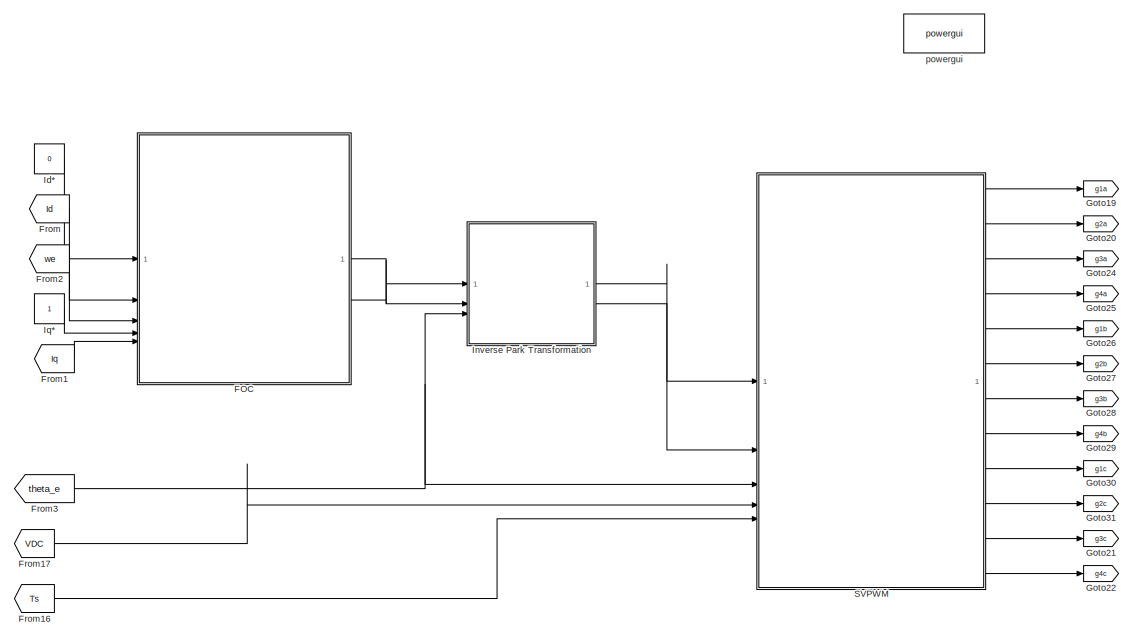
[diagram: root canvas - part 1/4, top right region]
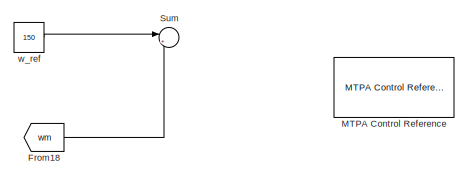
[diagram: root canvas - part 2/4, top left region]
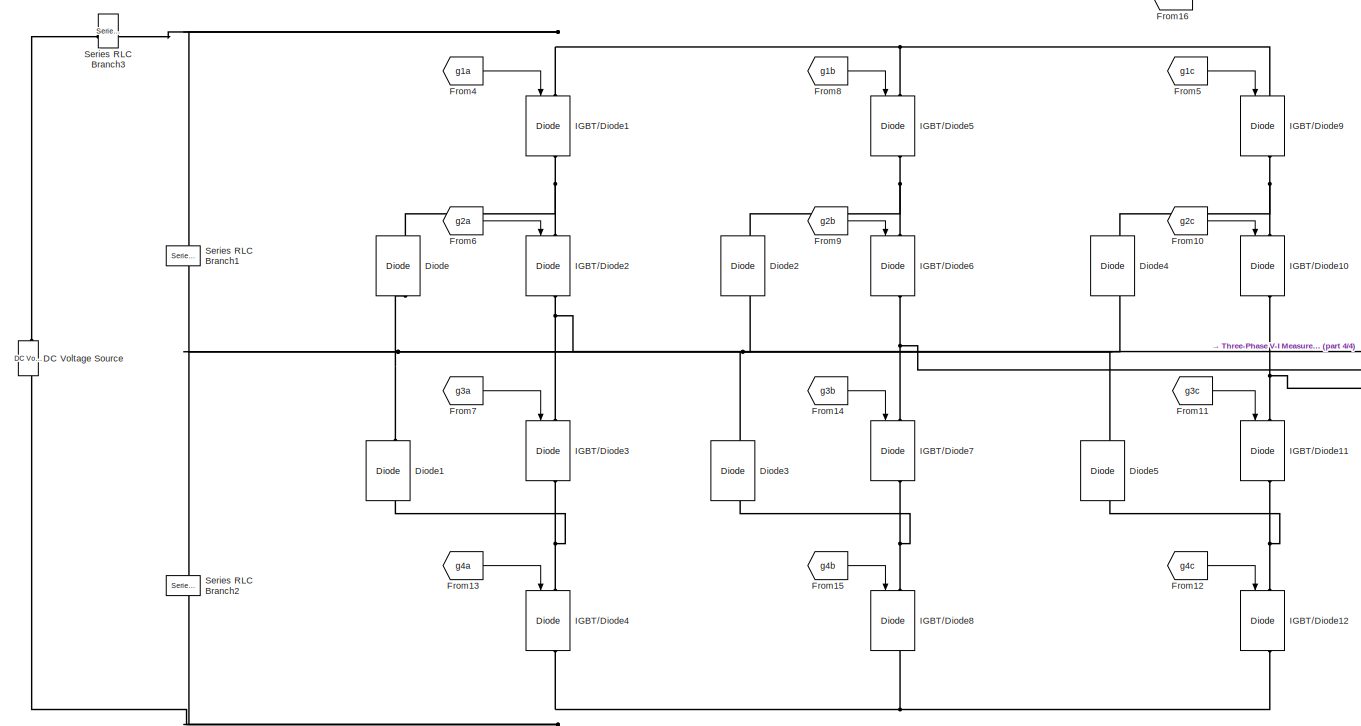
[diagram: root canvas - part 3/4, bottom left region]
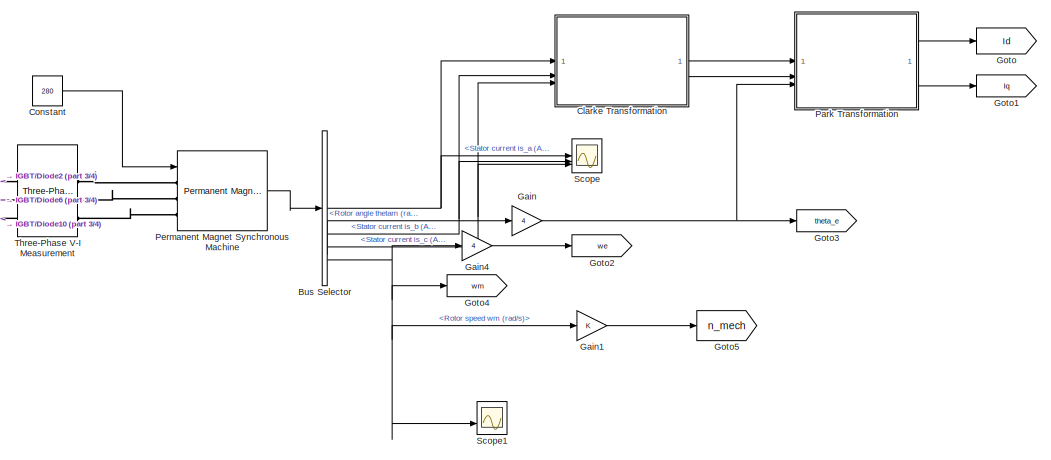
[diagram: root canvas - part 4/4, bottom right region]
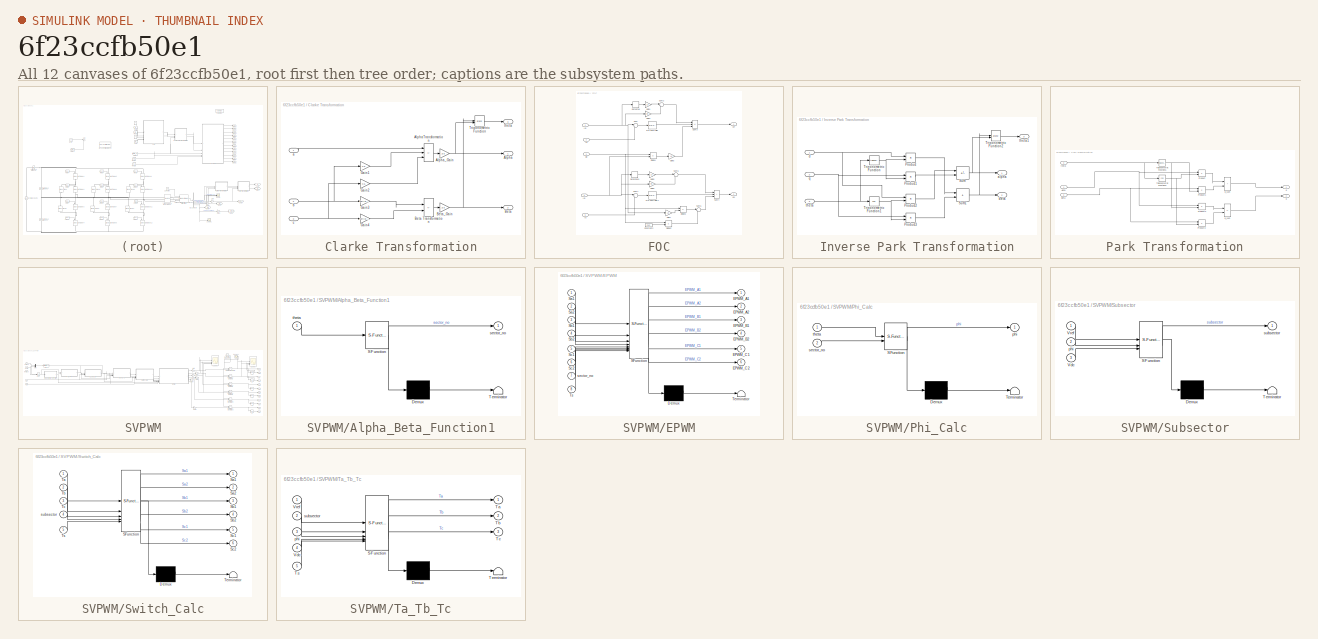
[diagram: thumbnail index - all 12 canvases of the model, root first then tree order]
MODEL slx_6f23ccfb50e1
KIND model
CONFIG AbsTol = auto
CONFIG EnableMultiTasking = off
CONFIG FixedStep = auto
CONFIG InitFcn = Ts=1/(16000);\nTs_Control=Ts;\nTs_Power=Ts;\nPulseDuration=5e-6;\nVrefpeak=399;\nVDC=800;\nR=1.4;\nL=1e-4;\nFreq = 120;\nRc= 0.00001;\nC=220e-6;\nLd = 473e-6;\nLq = 1155e-6;\nFpm = 0.1383;\nRs = 0.036;
CONFIG MaxStep = auto
CONFIG MinStep = auto
CONFIG RelTol = 1e-3
CONFIG SampleTimeConstraint = Unconstrained
CONFIG SolverName = VariableStepAuto
CONFIG StartTime = 0.0
CONFIG StopTime = 10.0
BLOCK [BusSelector] Bus Selector
  OutputSignals = Stator current is_a (A),Stator current is_b (A),Stator current is_c (A),Rotor angle thetam (rad),Rotor speed wm (rad/s),Electromagnetic torque Te (N*m)
BLOCK [SubSystem] Clarke Transformation
BLOCK [Outport] Clarke Transformation/Alpha
BLOCK [Sum] Clarke Transformation/AlphaTransformation
  IconShape = rectangular
  Inputs = |+--
BLOCK [Gain] Clarke Transformation/Alpha_Gain
  Gain = 2/3
BLOCK [Outport] Clarke Transformation/Beta
  Port = 2
BLOCK [Sum] Clarke Transformation/Beta Transformation
  IconShape = rectangular
  Inputs = |+-
BLOCK [Gain] Clarke Transformation/Beta_Gain
  Gain = 2/3
BLOCK [Gain] Clarke Transformation/Gain1
  Gain = 0.5
BLOCK [Gain] Clarke Transformation/Gain2
  Gain = 0.5
BLOCK [Gain] Clarke Transformation/Gain3
  Gain = sqrt(3)/2
BLOCK [Gain] Clarke Transformation/Gain4
  Gain = sqrt(3)/2
BLOCK [Trigonometry] Clarke Transformation/Trigonometric Function
  Operator = atan2
BLOCK [Inport] Clarke Transformation/a
BLOCK [Inport] Clarke Transformation/b
  Port = 2
BLOCK [Inport] Clarke Transformation/c
  Port = 3
BLOCK [Outport] Clarke Transformation/theta
  Port = 3
BLOCK [Constant] Constant
  Value = 280
BLOCK [Reference] DC Voltage Source  REF=spsDCVoltageSourceLib/DC Voltage Source
  LibrarySourceBlock = sps_lib/Sources/DC Voltage Source
  NameLocation = right
  SourceBlock = spsDCVoltageSourceLib/DC Voltage Source
  SourceType = DC Voltage Source
BLOCK [Reference] Diode  REF=spsDiodeLib/Diode
  LibrarySourceBlock = sps_lib/Power Electronics/Diode
  NameLocation = right
  SourceBlock = spsDiodeLib/Diode
  SourceType = Diode
BLOCK [Reference] Diode1  REF=spsDiodeLib/Diode
  LibrarySourceBlock = sps_lib/Power Electronics/Diode
  NameLocation = right
  SourceBlock = spsDiodeLib/Diode
  SourceType = Diode
BLOCK [Reference] Diode2  REF=spsDiodeLib/Diode
  LibrarySourceBlock = sps_lib/Power Electronics/Diode
  NameLocation = right
  SourceBlock = spsDiodeLib/Diode
  SourceType = Diode
BLOCK [Reference] Diode3  REF=spsDiodeLib/Diode
  LibrarySourceBlock = sps_lib/Power Electronics/Diode
  NameLocation = right
  SourceBlock = spsDiodeLib/Diode
  SourceType = Diode
BLOCK [Reference] Diode4  REF=spsDiodeLib/Diode
  LibrarySourceBlock = sps_lib/Power Electronics/Diode
  NameLocation = right
  SourceBlock = spsDiodeLib/Diode
  SourceType = Diode
BLOCK [Reference] Diode5  REF=spsDiodeLib/Diode
  LibrarySourceBlock = sps_lib/Power Electronics/Diode
  NameLocation = right
  SourceBlock = spsDiodeLib/Diode
  SourceType = Diode
BLOCK [SubSystem] FOC
BLOCK [Constant] FOC/Constant2
  Value = Fpm
BLOCK [Derivative] FOC/Derivative
BLOCK [Derivative] FOC/Derivative1
BLOCK [Product] FOC/Divide1
  Inputs = **
BLOCK [Product] FOC/Divide2
  Inputs = **
BLOCK [Product] FOC/Divide3
  Inputs = **
BLOCK [Gain] FOC/Gain1
  Gain = Ld
BLOCK [Gain] FOC/Gain2
  Gain = Rs
BLOCK [Gain] FOC/Gain3
  Gain = Lq
BLOCK [Gain] FOC/Gain5
  Gain = Lq
BLOCK [Gain] FOC/Gain6
  Gain = Rs
BLOCK [Gain] FOC/Gain7
  Gain = Ld
BLOCK [Inport] FOC/Id
  Port = 2
BLOCK [Inport] FOC/Id*
BLOCK [Inport] FOC/Iq
  Port = 5
BLOCK [Inport] FOC/Iq*
  Port = 4
BLOCK [Reference] FOC/PID Controller  REF=slpidlib/PID Controller
  LibrarySourceBlock = simulink/Continuous/PID Controller
  SourceBlock = slpidlib/PID Controller
  SourceType = PID 1dof
BLOCK [Reference] FOC/PID Controller1  REF=slpidlib/PID Controller
  LibrarySourceBlock = simulink/Continuous/PID Controller
  SourceBlock = slpidlib/PID Controller
  SourceType = PID 1dof
BLOCK [Sum] FOC/Sum
  Inputs = |+-
BLOCK [Sum] FOC/Sum1
  Inputs = |+-
BLOCK [Sum] FOC/Sum2
  Inputs = |++
BLOCK [Sum] FOC/Sum3
  IconShape = rectangular
  Inputs = |++-
BLOCK [Sum] FOC/Sum4
  IconShape = rectangular
  Inputs = |+++
BLOCK [Sum] FOC/Sum5
  Inputs = |++
BLOCK [Sum] FOC/Sum6
  Inputs = |++
BLOCK [Outport] FOC/Vd*
BLOCK [Outport] FOC/Vq*
  Port = 2
BLOCK [Inport] FOC/we
  Port = 3
BLOCK [From] From
  GotoTag = Id
BLOCK [From] From1
  GotoTag = Iq
BLOCK [From] From10
  GotoTag = g2c
  TagVisibility = global
BLOCK [From] From11
  GotoTag = g3c
  TagVisibility = global
BLOCK [From] From12
  GotoTag = g4c
  TagVisibility = global
BLOCK [From] From13
  GotoTag = g4a
  TagVisibility = global
BLOCK [From] From14
  GotoTag = g3b
  TagVisibility = global
BLOCK [From] From15
  GotoTag = g4b
  TagVisibility = global
BLOCK [From] From16
  GotoTag = Ts
BLOCK [From] From17
  GotoTag = VDC
BLOCK [From] From18
  GotoTag = wm
BLOCK [From] From2
  GotoTag = we
BLOCK [From] From3
  GotoTag = theta_e
BLOCK [From] From4
  GotoTag = g1a
  TagVisibility = global
BLOCK [From] From5
  GotoTag = g1c
  TagVisibility = global
BLOCK [From] From6
  GotoTag = g2a
  TagVisibility = global
BLOCK [From] From7
  GotoTag = g3a
  TagVisibility = global
BLOCK [From] From8
  GotoTag = g1b
  TagVisibility = global
BLOCK [From] From9
  GotoTag = g2b
  TagVisibility = global
BLOCK [Gain] Gain
  Gain = 4
BLOCK [Gain] Gain1
BLOCK [Gain] Gain4
  Gain = 4
BLOCK [Goto] Goto
  GotoTag = Id
BLOCK [Goto] Goto1
  GotoTag = Iq
BLOCK [Goto] Goto19
  GotoTag = g1a
  TagVisibility = global
BLOCK [Goto] Goto2
  GotoTag = we
BLOCK [Goto] Goto20
  GotoTag = g2a
  TagVisibility = global
BLOCK [Goto] Goto21
  GotoTag = g3c
  TagVisibility = global
BLOCK [Goto] Goto22
  GotoTag = g4c
  TagVisibility = global
BLOCK [Goto] Goto24
  GotoTag = g3a
  TagVisibility = global
BLOCK [Goto] Goto25
  GotoTag = g4a
  TagVisibility = global
BLOCK [Goto] Goto26
  GotoTag = g1b
  TagVisibility = global
BLOCK [Goto] Goto27
  GotoTag = g2b
  TagVisibility = global
BLOCK [Goto] Goto28
  GotoTag = g3b
  TagVisibility = global
BLOCK [Goto] Goto29
  GotoTag = g4b
  TagVisibility = global
BLOCK [Goto] Goto3
  GotoTag = theta_e
BLOCK [Goto] Goto30
  GotoTag = g1c
  TagVisibility = global
BLOCK [Goto] Goto31
  GotoTag = g2c
  TagVisibility = global
BLOCK [Goto] Goto4
  GotoTag = wm
BLOCK [Goto] Goto5
  GotoTag = n_mech
BLOCK [Reference] IGBT//Diode1  REF=spsIGBTDiodeLib/IGBT//Diode
  LibrarySourceBlock = sps_lib/Power Electronics/IGBT//Diode
  NameLocation = right
  SourceBlock = spsIGBTDiodeLib/IGBT//Diode
  SourceType = IGBT/Diode
BLOCK [Reference] IGBT//Diode10  REF=spsIGBTDiodeLib/IGBT//Diode
  LibrarySourceBlock = sps_lib/Power Electronics/IGBT//Diode
  NameLocation = right
  SourceBlock = spsIGBTDiodeLib/IGBT//Diode
  SourceType = IGBT/Diode
BLOCK [Reference] IGBT//Diode11  REF=spsIGBTDiodeLib/IGBT//Diode
  LibrarySourceBlock = sps_lib/Power Electronics/IGBT//Diode
  NameLocation = right
  SourceBlock = spsIGBTDiodeLib/IGBT//Diode
  SourceType = IGBT/Diode
BLOCK [Reference] IGBT//Diode12  REF=spsIGBTDiodeLib/IGBT//Diode
  LibrarySourceBlock = sps_lib/Power Electronics/IGBT//Diode
  NameLocation = right
  SourceBlock = spsIGBTDiodeLib/IGBT//Diode
  SourceType = IGBT/Diode
BLOCK [Reference] IGBT//Diode2  REF=spsIGBTDiodeLib/IGBT//Diode
  LibrarySourceBlock = sps_lib/Power Electronics/IGBT//Diode
  NameLocation = right
  SourceBlock = spsIGBTDiodeLib/IGBT//Diode
  SourceType = IGBT/Diode
BLOCK [Reference] IGBT//Diode3  REF=spsIGBTDiodeLib/IGBT//Diode
  LibrarySourceBlock = sps_lib/Power Electronics/IGBT//Diode
  NameLocation = right
  SourceBlock = spsIGBTDiodeLib/IGBT//Diode
  SourceType = IGBT/Diode
BLOCK [Reference] IGBT//Diode4  REF=spsIGBTDiodeLib/IGBT//Diode
  LibrarySourceBlock = sps_lib/Power Electronics/IGBT//Diode
  NameLocation = right
  SourceBlock = spsIGBTDiodeLib/IGBT//Diode
  SourceType = IGBT/Diode
BLOCK [Reference] IGBT//Diode5  REF=spsIGBTDiodeLib/IGBT//Diode
  LibrarySourceBlock = sps_lib/Power Electronics/IGBT//Diode
  NameLocation = right
  SourceBlock = spsIGBTDiodeLib/IGBT//Diode
  SourceType = IGBT/Diode
BLOCK [Reference] IGBT//Diode6  REF=spsIGBTDiodeLib/IGBT//Diode
  LibrarySourceBlock = sps_lib/Power Electronics/IGBT//Diode
  NameLocation = right
  SourceBlock = spsIGBTDiodeLib/IGBT//Diode
  SourceType = IGBT/Diode
BLOCK [Reference] IGBT//Diode7  REF=spsIGBTDiodeLib/IGBT//Diode
  LibrarySourceBlock = sps_lib/Power Electronics/IGBT//Diode
  NameLocation = right
  SourceBlock = spsIGBTDiodeLib/IGBT//Diode
  SourceType = IGBT/Diode
BLOCK [Reference] IGBT//Diode8  REF=spsIGBTDiodeLib/IGBT//Diode
  LibrarySourceBlock = sps_lib/Power Electronics/IGBT//Diode
  NameLocation = right
  SourceBlock = spsIGBTDiodeLib/IGBT//Diode
  SourceType = IGBT/Diode
BLOCK [Reference] IGBT//Diode9  REF=spsIGBTDiodeLib/IGBT//Diode
  LibrarySourceBlock = sps_lib/Power Electronics/IGBT//Diode
  NameLocation = right
  SourceBlock = spsIGBTDiodeLib/IGBT//Diode
  SourceType = IGBT/Diode
BLOCK [Constant] Id*
  Value = 0
BLOCK [SubSystem] Inverse Park Transformation
BLOCK [Product] Inverse Park Transformation/Product
BLOCK [Product] Inverse Park Transformation/Product1
BLOCK [Product] Inverse Park Transformation/Product2
BLOCK [Product] Inverse Park Transformation/Product3
BLOCK [Sum] Inverse Park Transformation/Sum
  IconShape = rectangular
  Inputs = |+-
BLOCK [Sum] Inverse Park Transformation/Sum1
  IconShape = rectangular
  Inputs = |++
BLOCK [Trigonometry] Inverse Park Transformation/Trigonometric Function
BLOCK [Trigonometry] Inverse Park Transformation/Trigonometric Function1
  Operator = cos
BLOCK [Trigonometry] Inverse Park Transformation/Trigonometric Function2
  Operator = atan2
BLOCK [Outport] Inverse Park Transformation/alpha
BLOCK [Outport] Inverse Park Transformation/beta
  Port = 2
BLOCK [Inport] Inverse Park Transformation/d
BLOCK [Inport] Inverse Park Transformation/q
  Port = 2
BLOCK [Inport] Inverse Park Transformation/theta
  Port = 3
BLOCK [Outport] Inverse Park Transformation/theta1
  Port = 3
BLOCK [Constant] Iq*
BLOCK [Reference] MTPA Control Reference  REF=mcbcontrolslib/MTPA Control Reference
  LibrarySourceBlock = mcblib/Controls/Control Reference/MTPA Control Reference
  SourceBlock = mcbcontrolslib/MTPA Control Reference
  SourceType = MTPA Control Reference
BLOCK [SubSystem] Park Transformation
BLOCK [Inport] Park Transformation/Alpha
BLOCK [Inport] Park Transformation/Beta
  Port = 2
BLOCK [Product] Park Transformation/Product
BLOCK [Product] Park Transformation/Product1
BLOCK [Product] Park Transformation/Product2
BLOCK [Product] Park Transformation/Product3
BLOCK [Trigonometry] Park Transformation/Trigonometric Function1
BLOCK [Trigonometry] Park Transformation/Trigonometric Function2
  Operator = cos
BLOCK [Outport] Park Transformation/d
BLOCK [Sum] Park Transformation/d_sum
  IconShape = rectangular
  Inputs = |++
BLOCK [Outport] Park Transformation/q
  Port = 2
BLOCK [Sum] Park Transformation/q_sum
  IconShape = rectangular
  Inputs = |-+
BLOCK [Inport] Park Transformation/theta
  Port = 3
BLOCK [Reference] Permanent Magnet Synchronous Machine  REF=spsPermanentMagnetSynchronousMachineLib/Permanent Magnet
Synchronous Machine
  SourceBlock = spsPermanentMagnetSynchronousMachineLib/Permanent Magnet\nSynchronous Machine
  SourceType = Permanent Magnet Synchronous Machine
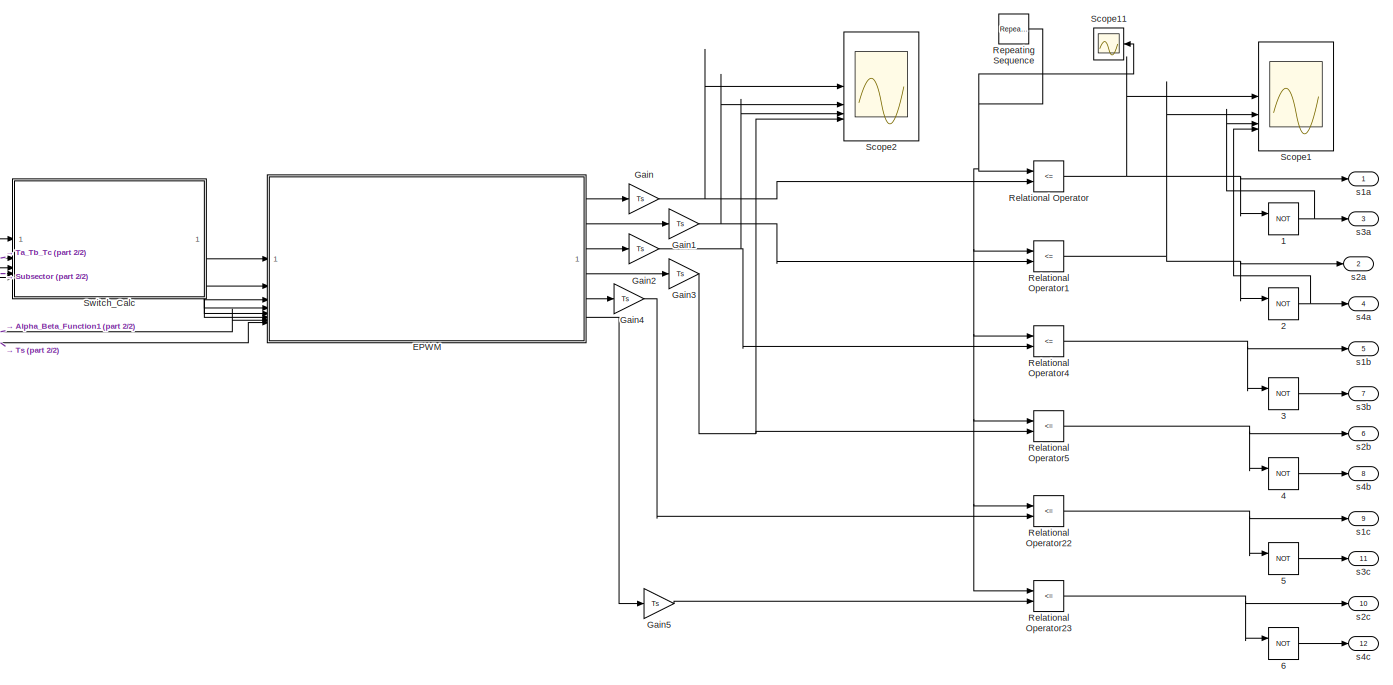
[diagram: SVPWM - part 1/2, right side, full height]
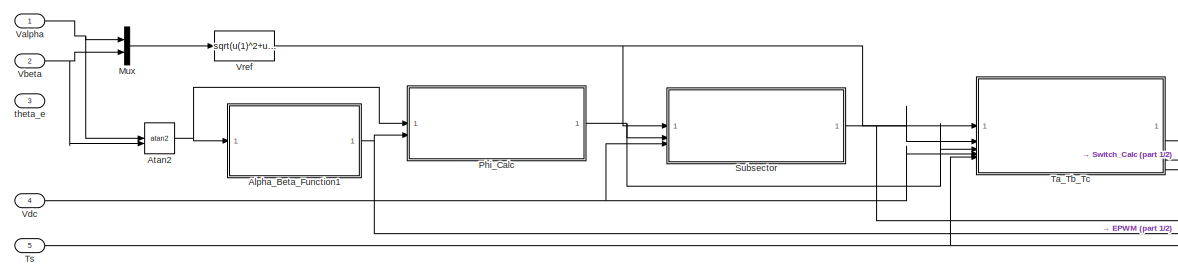
[diagram: SVPWM - part 2/2, middle left region]
BLOCK [SubSystem] SVPWM
BLOCK [Logic] SVPWM/1
  AllPortsSameDT = off
  Operator = NOT
  OutDataTypeStr = boolean
BLOCK [Logic] SVPWM/2
  AllPortsSameDT = off
  Operator = NOT
  OutDataTypeStr = boolean
BLOCK [Logic] SVPWM/3
  AllPortsSameDT = off
  Operator = NOT
  OutDataTypeStr = boolean
BLOCK [Logic] SVPWM/4
  AllPortsSameDT = off
  Operator = NOT
  OutDataTypeStr = boolean
BLOCK [Logic] SVPWM/5
  AllPortsSameDT = off
  Operator = NOT
  OutDataTypeStr = boolean
BLOCK [Logic] SVPWM/6
  AllPortsSameDT = off
  Operator = NOT
  OutDataTypeStr = boolean
BLOCK [SubSystem] SVPWM/Alpha_Beta_Function1
  ErrorFcn = Stateflow.Translate.translate
  PermitHierarchicalResolution = ExplicitOnly
  SFBlockType = MATLAB Function
  TreatAsAtomicUnit = on
BLOCK [Demux] SVPWM/Alpha_Beta_Function1/ Demux 
  Outputs = 1
BLOCK [S-Function] SVPWM/Alpha_Beta_Function1/ SFunction 
  EnableBusSupport = on
  FunctionName = sf_sfun
  PortCounts = [1 2]
  SFcnIsStateOwnerBlock = off
  SFunctionDeploymentMode = off
  Tag = Stateflow S-Function 2
BLOCK [Terminator] SVPWM/Alpha_Beta_Function1/ Terminator 
BLOCK [Outport] SVPWM/Alpha_Beta_Function1/sector_no
  VectorParamsAs1DForOutWhenUnconnected = off
BLOCK [Inport] SVPWM/Alpha_Beta_Function1/theta
BLOCK [Trigonometry] SVPWM/Atan2
  Operator = atan2
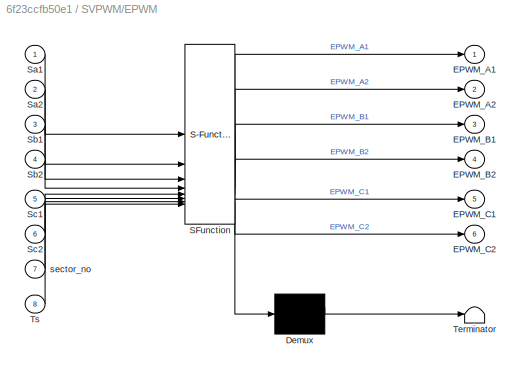
BLOCK [SubSystem] SVPWM/EPWM
  ErrorFcn = Stateflow.Translate.translate
  PermitHierarchicalResolution = ExplicitOnly
  SFBlockType = MATLAB Function
  TreatAsAtomicUnit = on
BLOCK [Demux] SVPWM/EPWM/ Demux 
  Outputs = 1
BLOCK [S-Function] SVPWM/EPWM/ SFunction 
  EnableBusSupport = on
  FunctionName = sf_sfun
  PortCounts = [8 7]
  SFcnIsStateOwnerBlock = off
  SFunctionDeploymentMode = off
  Tag = Stateflow S-Function 8
BLOCK [Terminator] SVPWM/EPWM/ Terminator 
BLOCK [Outport] SVPWM/EPWM/EPWM_A1
  VectorParamsAs1DForOutWhenUnconnected = off
BLOCK [Outport] SVPWM/EPWM/EPWM_A2
  Port = 2
  VectorParamsAs1DForOutWhenUnconnected = off
BLOCK [Outport] SVPWM/EPWM/EPWM_B1
  Port = 3
  VectorParamsAs1DForOutWhenUnconnected = off
BLOCK [Outport] SVPWM/EPWM/EPWM_B2
  Port = 4
  VectorParamsAs1DForOutWhenUnconnected = off
BLOCK [Outport] SVPWM/EPWM/EPWM_C1
  Port = 5
  VectorParamsAs1DForOutWhenUnconnected = off
BLOCK [Outport] SVPWM/EPWM/EPWM_C2
  Port = 6
  VectorParamsAs1DForOutWhenUnconnected = off
BLOCK [Inport] SVPWM/EPWM/Sa1
BLOCK [Inport] SVPWM/EPWM/Sa2
  Port = 2
BLOCK [Inport] SVPWM/EPWM/Sb1
  Port = 3
BLOCK [Inport] SVPWM/EPWM/Sb2
  Port = 4
BLOCK [Inport] SVPWM/EPWM/Sc1
  Port = 5
BLOCK [Inport] SVPWM/EPWM/Sc2
  Port = 6
BLOCK [Inport] SVPWM/EPWM/Ts
  Port = 8
BLOCK [Inport] SVPWM/EPWM/sector_no
  Port = 7
BLOCK [Gain] SVPWM/Gain
  Gain = Ts
BLOCK [Gain] SVPWM/Gain1
  Gain = Ts
BLOCK [Gain] SVPWM/Gain2
  Gain = Ts
BLOCK [Gain] SVPWM/Gain3
  Gain = Ts
BLOCK [Gain] SVPWM/Gain4
  Gain = Ts
BLOCK [Gain] SVPWM/Gain5
  Gain = Ts
BLOCK [Mux] SVPWM/Mux
  DisplayOption = bar
  Inputs = 2
BLOCK [SubSystem] SVPWM/Phi_Calc
  ErrorFcn = Stateflow.Translate.translate
  PermitHierarchicalResolution = ExplicitOnly
  SFBlockType = MATLAB Function
  TreatAsAtomicUnit = on
BLOCK [Demux] SVPWM/Phi_Calc/ Demux 
  Outputs = 1
BLOCK [S-Function] SVPWM/Phi_Calc/ SFunction 
  EnableBusSupport = on
  FunctionName = sf_sfun
  PortCounts = [2 2]
  SFcnIsStateOwnerBlock = off
  SFunctionDeploymentMode = off
  Tag = Stateflow S-Function 3
BLOCK [Terminator] SVPWM/Phi_Calc/ Terminator 
BLOCK [Outport] SVPWM/Phi_Calc/phi
  VectorParamsAs1DForOutWhenUnconnected = off
BLOCK [Inport] SVPWM/Phi_Calc/sector_no
  Port = 2
BLOCK [Inport] SVPWM/Phi_Calc/theta
BLOCK [RelationalOperator] SVPWM/Relational Operator
  InputSameDT = off
  Operator = <=
  OutDataTypeStr = boolean
BLOCK [RelationalOperator] SVPWM/Relational Operator1
  InputSameDT = off
  Operator = <=
  OutDataTypeStr = boolean
BLOCK [RelationalOperator] SVPWM/Relational Operator22
  InputSameDT = off
  Operator = <=
  OutDataTypeStr = boolean
BLOCK [RelationalOperator] SVPWM/Relational Operator23
  InputSameDT = off
  Operator = <=
  OutDataTypeStr = boolean
BLOCK [RelationalOperator] SVPWM/Relational Operator4
  InputSameDT = off
  Operator = <=
  OutDataTypeStr = boolean
BLOCK [RelationalOperator] SVPWM/Relational Operator5
  InputSameDT = off
  Operator = <=
  OutDataTypeStr = boolean
BLOCK [Reference] SVPWM/Repeating Sequence  REF=simulink/Sources/Repeating
Sequence
  SourceBlock = simulink/Sources/Repeating\nSequence
  SourceType = Repeating table
BLOCK [Scope] SVPWM/Scope1
  Floating = off
  NumInputPorts = 4
  ScopeSpecificationString = Simulink.scopes.TimeScopeBlockCfg('CurrentConfiguration', extmgr.ConfigurationSet(extmgr.Configuration('Core','General UI',true),extmgr.Configuration('Core','Source UI',true),extmgr.Configuration('Sources','WiredSimulink',true,'DataLoggingVariableName','ScopeData1'),extmgr.Configuration('Visuals','Time Domain',true,'SerializedDisplays',{struct('MinYLimReal','-0.125','MaxYLimReal','1.125','YLabelRe...<+3484ch>
BLOCK [Scope] SVPWM/Scope11
  Floating = off
  NameLocation = top
  NumInputPorts = 1
  ScopeSpecificationString = Simulink.scopes.TimeScopeBlockCfg('CurrentConfiguration', extmgr.ConfigurationSet(extmgr.Configuration('Core','General UI',true),extmgr.Configuration('Core','Source UI',true),extmgr.Configuration('Sources','WiredSimulink',true,'DataLoggingVariableName','ScopeData2','DataLoggingSaveFormat','Array','DataLoggingDecimation','1'),extmgr.Configuration('Visuals','Time Domain',true,'SerializedDisplays',{s...<+1506ch>
BLOCK [Scope] SVPWM/Scope2
  Floating = off
  NumInputPorts = 4
  ScopeSpecificationString = Simulink.scopes.TimeScopeBlockCfg('CurrentConfiguration', extmgr.ConfigurationSet(extmgr.Configuration('Core','General UI',true),extmgr.Configuration('Core','Source UI',true),extmgr.Configuration('Sources','WiredSimulink',true,'DataLoggingVariableName','ScopeData3'),extmgr.Configuration('Visuals','Time Domain',true,'SerializedDisplays',{struct('MinYLimReal','-0.125','MaxYLimReal','1.125','YLabelRe...<+3470ch>
BLOCK [SubSystem] SVPWM/Subsector
  ErrorFcn = Stateflow.Translate.translate
  PermitHierarchicalResolution = ExplicitOnly
  SFBlockType = MATLAB Function
  TreatAsAtomicUnit = on
BLOCK [Demux] SVPWM/Subsector/ Demux 
  Outputs = 1
BLOCK [S-Function] SVPWM/Subsector/ SFunction 
  EnableBusSupport = on
  FunctionName = sf_sfun
  PortCounts = [3 2]
  SFcnIsStateOwnerBlock = off
  SFunctionDeploymentMode = off
  Tag = Stateflow S-Function 5
BLOCK [Terminator] SVPWM/Subsector/ Terminator 
BLOCK [Inport] SVPWM/Subsector/Vdc
  Port = 3
BLOCK [Inport] SVPWM/Subsector/Vref
BLOCK [Inport] SVPWM/Subsector/phi
  Port = 2
BLOCK [Outport] SVPWM/Subsector/subsector
  VectorParamsAs1DForOutWhenUnconnected = off
BLOCK [SubSystem] SVPWM/Switch_Calc
  ErrorFcn = Stateflow.Translate.translate
  PermitHierarchicalResolution = ExplicitOnly
  SFBlockType = MATLAB Function
  TreatAsAtomicUnit = on
BLOCK [Demux] SVPWM/Switch_Calc/ Demux 
  Outputs = 1
BLOCK [S-Function] SVPWM/Switch_Calc/ SFunction 
  EnableBusSupport = on
  FunctionName = sf_sfun
  PortCounts = [5 7]
  SFcnIsStateOwnerBlock = off
  SFunctionDeploymentMode = off
  Tag = Stateflow S-Function 7
BLOCK [Terminator] SVPWM/Switch_Calc/ Terminator 
BLOCK [Outport] SVPWM/Switch_Calc/Sa1
  VectorParamsAs1DForOutWhenUnconnected = off
BLOCK [Outport] SVPWM/Switch_Calc/Sa2
  Port = 2
  VectorParamsAs1DForOutWhenUnconnected = off
BLOCK [Outport] SVPWM/Switch_Calc/Sb1
  Port = 3
  VectorParamsAs1DForOutWhenUnconnected = off
BLOCK [Outport] SVPWM/Switch_Calc/Sb2
  Port = 4
  VectorParamsAs1DForOutWhenUnconnected = off
BLOCK [Outport] SVPWM/Switch_Calc/Sc1
  Port = 5
  VectorParamsAs1DForOutWhenUnconnected = off
BLOCK [Outport] SVPWM/Switch_Calc/Sc2
  Port = 6
  VectorParamsAs1DForOutWhenUnconnected = off
BLOCK [Inport] SVPWM/Switch_Calc/Ta
BLOCK [Inport] SVPWM/Switch_Calc/Tb
  Port = 2
BLOCK [Inport] SVPWM/Switch_Calc/Tc
  Port = 3
BLOCK [Inport] SVPWM/Switch_Calc/Ts
  Port = 5
BLOCK [Inport] SVPWM/Switch_Calc/subsector
  Port = 4
BLOCK [SubSystem] SVPWM/Ta_Tb_Tc
  ErrorFcn = Stateflow.Translate.translate
  PermitHierarchicalResolution = ExplicitOnly
  SFBlockType = MATLAB Function
  TreatAsAtomicUnit = on
BLOCK [Demux] SVPWM/Ta_Tb_Tc/ Demux 
  Outputs = 1
BLOCK [S-Function] SVPWM/Ta_Tb_Tc/ SFunction 
  EnableBusSupport = on
  FunctionName = sf_sfun
  PortCounts = [5 4]
  SFcnIsStateOwnerBlock = off
  SFunctionDeploymentMode = off
  Tag = Stateflow S-Function 6
BLOCK [Terminator] SVPWM/Ta_Tb_Tc/ Terminator 
BLOCK [Outport] SVPWM/Ta_Tb_Tc/Ta
  VectorParamsAs1DForOutWhenUnconnected = off
BLOCK [Outport] SVPWM/Ta_Tb_Tc/Tb
  Port = 2
  VectorParamsAs1DForOutWhenUnconnected = off
BLOCK [Outport] SVPWM/Ta_Tb_Tc/Tc
  Port = 3
  VectorParamsAs1DForOutWhenUnconnected = off
BLOCK [Inport] SVPWM/Ta_Tb_Tc/Ts
  Port = 5
BLOCK [Inport] SVPWM/Ta_Tb_Tc/Vdc
  Port = 4
BLOCK [Inport] SVPWM/Ta_Tb_Tc/Vref
BLOCK [Inport] SVPWM/Ta_Tb_Tc/phi
  Port = 3
BLOCK [Inport] SVPWM/Ta_Tb_Tc/subsector
  Port = 2
BLOCK [Inport] SVPWM/Ts
  Port = 5
BLOCK [Inport] SVPWM/Valpha
BLOCK [Inport] SVPWM/Vbeta
  Port = 2
BLOCK [Inport] SVPWM/Vdc
  Port = 4
BLOCK [Fcn] SVPWM/Vref
  Expr = sqrt(u(1)^2+u(2)^2)
BLOCK [Outport] SVPWM/s1a
BLOCK [Outport] SVPWM/s1b
  Port = 5
BLOCK [Outport] SVPWM/s1c
  Port = 9
BLOCK [Outport] SVPWM/s2a
  Port = 2
BLOCK [Outport] SVPWM/s2b
  Port = 6
BLOCK [Outport] SVPWM/s2c
  Port = 10
BLOCK [Outport] SVPWM/s3a
  Port = 3
BLOCK [Outport] SVPWM/s3b
  Port = 7
BLOCK [Outport] SVPWM/s3c
  Port = 11
BLOCK [Outport] SVPWM/s4a
  Port = 4
BLOCK [Outport] SVPWM/s4b
  Port = 8
BLOCK [Outport] SVPWM/s4c
  Port = 12
BLOCK [Inport] SVPWM/theta_e
  Port = 3
BLOCK [Scope] Scope
  Floating = off
  NumInputPorts = 3
  ScopeSpecificationString = Simulink.scopes.TimeScopeBlockCfg('CurrentConfiguration', extmgr.ConfigurationSet(extmgr.Configuration('Core','General UI',true),extmgr.Configuration('Core','Source UI',true),extmgr.Configuration('Sources','WiredSimulink',true),extmgr.Configuration('Visuals','Time Domain',true,'SerializedDisplays',{struct('MinYLimReal','-0.81535','MaxYLimReal','0.75281','YLabelReal','','MinYLimMag','0.00000','MaxY...<+1401ch>
BLOCK [Scope] Scope1
  Floating = off
  NumInputPorts = 2
  ScopeSpecificationString = Simulink.scopes.TimeScopeBlockCfg('CurrentConfiguration', extmgr.ConfigurationSet(extmgr.Configuration('Core','General UI',true),extmgr.Configuration('Core','Source UI',true),extmgr.Configuration('Sources','WiredSimulink',true,'DataLoggingVariableName','ScopeData4'),extmgr.Configuration('Visuals','Time Domain',true,'SerializedDisplays',{struct('MinYLimReal','-10','MaxYLimReal','10','YLabelReal',''...<+1317ch>
BLOCK [Reference] Series RLC Branch1  REF=spsSeriesRLCBranchLib/Series RLC Branch
  LibrarySourceBlock = sps_lib/Passives/Series RLC Branch
  NameLocation = left
  SourceBlock = spsSeriesRLCBranchLib/Series RLC Branch
  SourceType = Series RLC Branch
BLOCK [Reference] Series RLC Branch2  REF=spsSeriesRLCBranchLib/Series RLC Branch
  LibrarySourceBlock = sps_lib/Passives/Series RLC Branch
  NameLocation = left
  SourceBlock = spsSeriesRLCBranchLib/Series RLC Branch
  SourceType = Series RLC Branch
BLOCK [Reference] Series RLC Branch3  REF=spsSeriesRLCBranchLib/Series RLC Branch
  LibrarySourceBlock = sps_lib/Passives/Series RLC Branch
  NameLocation = top
  SourceBlock = spsSeriesRLCBranchLib/Series RLC Branch
  SourceType = Series RLC Branch
BLOCK [Sum] Sum
  Inputs = |+-
BLOCK [Reference] Three-Phase V-I Measurement  REF=spsThreePhaseVIMeasurementLib/Three-Phase
V-I Measurement
  LibrarySourceBlock = sps_lib/Sensors and Measurements/Three-Phase\nV-I Measurement
  SourceBlock = spsThreePhaseVIMeasurementLib/Three-Phase\nV-I Measurement
  SourceType = Three-Phase VI Measurement
BLOCK [Reference] powergui  REF=spspowerguiLib/powergui
  Priority = 1
  SourceBlock = spspowerguiLib/powergui
  SourceType = PSB option menu block
BLOCK [Constant] w_ref
  Value = 150
NET Bus Selector:1 -> Clarke Transformation:1, Scope:1
NET Bus Selector:2 -> Clarke Transformation:2, Scope:2
NET Bus Selector:3 -> Clarke Transformation:3, Scope:3
LINE Bus Selector:4 -> Gain:1
NET Bus Selector:5 -> Gain1:1, Gain4:1, Goto4:1, Scope1:2
LINE Clarke Transformation/AlphaTransformation:1 -> Clarke Transformation/Alpha_Gain:1
NET Clarke Transformation/Alpha_Gain:1 -> Clarke Transformation/Alpha:1, Clarke Transformation/Trigonometric Function:2
LINE Clarke Transformation/Beta Transformation:1 -> Clarke Transformation/Beta_Gain:1
NET Clarke Transformation/Beta_Gain:1 -> Clarke Transformation/Beta:1, Clarke Transformation/Trigonometric Function:1
LINE Clarke Transformation/Gain1:1 -> Clarke Transformation/AlphaTransformation:2
LINE Clarke Transformation/Gain2:1 -> Clarke Transformation/AlphaTransformation:3
LINE Clarke Transformation/Gain3:1 -> Clarke Transformation/Beta Transformation:1
LINE Clarke Transformation/Gain4:1 -> Clarke Transformation/Beta Transformation:2
LINE Clarke Transformation/Trigonometric Function:1 -> Clarke Transformation/theta:1
LINE Clarke Transformation/a:1 -> Clarke Transformation/AlphaTransformation:1
NET Clarke Transformation/b:1 -> Clarke Transformation/Gain1:1, Clarke Transformation/Gain3:1
NET Clarke Transformation/c:1 -> Clarke Transformation/Gain2:1, Clarke Transformation/Gain4:1
LINE Clarke Transformation:1 -> Park Transformation:1
LINE Clarke Transformation:2 -> Park Transformation:2
LINE Constant:1 -> Permanent Magnet Synchronous Machine:1
LINE FOC/Constant2:1 -> FOC/Divide2:2
LINE FOC/Derivative1:1 -> FOC/Gain5:1
LINE FOC/Derivative:1 -> FOC/Gain1:1
LINE FOC/Divide1:1 -> FOC/Gain3:1
LINE FOC/Divide2:1 -> FOC/Sum6:2
LINE FOC/Divide3:1 -> FOC/Sum6:1
LINE FOC/Gain1:1 -> FOC/Sum2:1
LINE FOC/Gain2:1 -> FOC/Sum2:2
LINE FOC/Gain3:1 -> FOC/Sum3:3
LINE FOC/Gain5:1 -> FOC/Sum5:1
LINE FOC/Gain6:1 -> FOC/Sum5:2
LINE FOC/Gain7:1 -> FOC/Divide3:2
NET FOC/Id*:1 -> FOC/Derivative:1, FOC/Gain2:1, FOC/Gain7:1, FOC/Sum:1
LINE FOC/Id:1 -> FOC/Sum:2
NET FOC/Iq*:1 -> FOC/Derivative1:1, FOC/Divide1:2, FOC/Gain6:1, FOC/Sum1:1
LINE FOC/Iq:1 -> FOC/Sum1:2
LINE FOC/PID Controller1:1 -> FOC/Sum4:2
LINE FOC/PID Controller:1 -> FOC/Sum3:2
LINE FOC/Sum1:1 -> FOC/PID Controller1:1
LINE FOC/Sum2:1 -> FOC/Sum3:1
LINE FOC/Sum3:1 -> FOC/Vd*:1
LINE FOC/Sum4:1 -> FOC/Vq*:1
LINE FOC/Sum5:1 -> FOC/Sum4:1
LINE FOC/Sum6:1 -> FOC/Sum4:3
LINE FOC/Sum:1 -> FOC/PID Controller:1
NET FOC/we:1 -> FOC/Divide1:1, FOC/Divide2:1, FOC/Divide3:1
LINE FOC:1 -> Inverse Park Transformation:1
LINE FOC:2 -> Inverse Park Transformation:2
LINE From10:1 -> IGBT//Diode10:1
LINE From11:1 -> IGBT//Diode11:1
LINE From12:1 -> IGBT//Diode12:1
LINE From13:1 -> IGBT//Diode4:1
LINE From14:1 -> IGBT//Diode7:1
LINE From15:1 -> IGBT//Diode8:1
LINE From16:1 -> SVPWM:5
LINE From17:1 -> SVPWM:4
LINE From18:1 -> Sum:2
LINE From1:1 -> FOC:5
LINE From2:1 -> FOC:3
NET From3:1 -> Inverse Park Transformation:3, SVPWM:3
LINE From4:1 -> IGBT//Diode1:1
LINE From5:1 -> IGBT//Diode9:1
LINE From6:1 -> IGBT//Diode2:1
LINE From7:1 -> IGBT//Diode3:1
LINE From8:1 -> IGBT//Diode5:1
LINE From9:1 -> IGBT//Diode6:1
LINE From:1 -> FOC:2
LINE Gain1:1 -> Goto5:1
LINE Gain4:1 -> Goto2:1
NET Gain:1 -> Goto3:1, Park Transformation:3
LINE Id*:1 -> FOC:1
LINE Inverse Park Transformation/Product1:1 -> Inverse Park Transformation/Sum:2
LINE Inverse Park Transformation/Product2:1 -> Inverse Park Transformation/Sum:1
LINE Inverse Park Transformation/Product3:1 -> Inverse Park Transformation/Sum1:2
LINE Inverse Park Transformation/Product:1 -> Inverse Park Transformation/Sum1:1
NET Inverse Park Transformation/Sum1:1 -> Inverse Park Transformation/Trigonometric Function2:1, Inverse Park Transformation/beta:1
NET Inverse Park Transformation/Sum:1 -> Inverse Park Transformation/Trigonometric Function2:2, Inverse Park Transformation/alpha:1
NET Inverse Park Transformation/Trigonometric Function1:1 -> Inverse Park Transformation/Product2:2, Inverse Park Transformation/Product3:2
LINE Inverse Park Transformation/Trigonometric Function2:1 -> Inverse Park Transformation/theta1:1
NET Inverse Park Transformation/Trigonometric Function:1 -> Inverse Park Transformation/Product1:2, Inverse Park Transformation/Product:2
NET Inverse Park Transformation/d:1 -> Inverse Park Transformation/Product2:1, Inverse Park Transformation/Product:1
NET Inverse Park Transformation/q:1 -> Inverse Park Transformation/Product1:1, Inverse Park Transformation/Product3:1
NET Inverse Park Transformation/theta:1 -> Inverse Park Transformation/Trigonometric Function1:1, Inverse Park Transformation/Trigonometric Function:1
LINE Inverse Park Transformation:1 -> SVPWM:1
LINE Inverse Park Transformation:2 -> SVPWM:2
LINE Iq*:1 -> FOC:4
NET Park Transformation/Alpha:1 -> Park Transformation/Product2:1, Park Transformation/Product:1
NET Park Transformation/Beta:1 -> Park Transformation/Product1:1, Park Transformation/Product3:1
LINE Park Transformation/Product1:1 -> Park Transformation/d_sum:2
LINE Park Transformation/Product2:1 -> Park Transformation/q_sum:1
LINE Park Transformation/Product3:1 -> Park Transformation/q_sum:2
LINE Park Transformation/Product:1 -> Park Transformation/d_sum:1
NET Park Transformation/Trigonometric Function1:1 -> Park Transformation/Product1:2, Park Transformation/Product2:2
NET Park Transformation/Trigonometric Function2:1 -> Park Transformation/Product3:2, Park Transformation/Product:2
LINE Park Transformation/d_sum:1 -> Park Transformation/d:1
LINE Park Transformation/q_sum:1 -> Park Transformation/q:1
NET Park Transformation/theta:1 -> Park Transformation/Trigonometric Function1:1, Park Transformation/Trigonometric Function2:1
LINE Park Transformation:1 -> Goto:1
LINE Park Transformation:2 -> Goto1:1
LINE Permanent Magnet Synchronous Machine:1 -> Bus Selector:1
NET SVPWM/1:1 -> SVPWM/Scope1:3, SVPWM/s3a:1
NET SVPWM/2:1 -> SVPWM/Scope1:4, SVPWM/s4a:1
LINE SVPWM/3:1 -> SVPWM/s3b:1
LINE SVPWM/4:1 -> SVPWM/s4b:1
LINE SVPWM/5:1 -> SVPWM/s3c:1
LINE SVPWM/6:1 -> SVPWM/s4c:1
NET SVPWM/Alpha_Beta_Function1:1 -> SVPWM/EPWM:7, SVPWM/Phi_Calc:2
NET SVPWM/Atan2:1 -> SVPWM/Alpha_Beta_Function1:1, SVPWM/Phi_Calc:1
LINE SVPWM/EPWM:1 -> SVPWM/Gain:1
LINE SVPWM/EPWM:2 -> SVPWM/Gain1:1
LINE SVPWM/EPWM:3 -> SVPWM/Gain2:1
LINE SVPWM/EPWM:4 -> SVPWM/Gain3:1
LINE SVPWM/EPWM:5 -> SVPWM/Gain4:1
LINE SVPWM/EPWM:6 -> SVPWM/Gain5:1
NET SVPWM/Gain1:1 -> SVPWM/Relational Operator1:2, SVPWM/Scope2:2
NET SVPWM/Gain2:1 -> SVPWM/Relational Operator4:2, SVPWM/Scope2:3
NET SVPWM/Gain3:1 -> SVPWM/Relational Operator5:2, SVPWM/Scope2:4
LINE SVPWM/Gain4:1 -> SVPWM/Relational Operator22:2
LINE SVPWM/Gain5:1 -> SVPWM/Relational Operator23:2
NET SVPWM/Gain:1 -> SVPWM/Relational Operator:2, SVPWM/Scope2:1
LINE SVPWM/Mux:1 -> SVPWM/Vref:1
NET SVPWM/Phi_Calc:1 -> SVPWM/Subsector:2, SVPWM/Ta_Tb_Tc:3
NET SVPWM/Relational Operator1:1 -> SVPWM/2:1, SVPWM/Scope1:2, SVPWM/s2a:1
NET SVPWM/Relational Operator22:1 -> SVPWM/5:1, SVPWM/s1c:1
NET SVPWM/Relational Operator23:1 -> SVPWM/6:1, SVPWM/s2c:1
NET SVPWM/Relational Operator4:1 -> SVPWM/3:1, SVPWM/s1b:1
NET SVPWM/Relational Operator5:1 -> SVPWM/4:1, SVPWM/s2b:1
NET SVPWM/Relational Operator:1 -> SVPWM/1:1, SVPWM/Scope1:1, SVPWM/s1a:1
NET SVPWM/Repeating Sequence:1 -> SVPWM/Relational Operator1:1, SVPWM/Relational Operator22:1, SVPWM/Relational Operator23:1, SVPWM/Relational Operator4:1, SVPWM/Relational Operator5:1, SVPWM/Relational Operator:1, SVPWM/Scope11:1
NET SVPWM/Subsector:1 -> SVPWM/Switch_Calc:4, SVPWM/Ta_Tb_Tc:2
LINE SVPWM/Switch_Calc:1 -> SVPWM/EPWM:1
LINE SVPWM/Switch_Calc:2 -> SVPWM/EPWM:2
LINE SVPWM/Switch_Calc:3 -> SVPWM/EPWM:3
LINE SVPWM/Switch_Calc:4 -> SVPWM/EPWM:4
LINE SVPWM/Switch_Calc:5 -> SVPWM/EPWM:5
LINE SVPWM/Switch_Calc:6 -> SVPWM/EPWM:6
LINE SVPWM/Ta_Tb_Tc:1 -> SVPWM/Switch_Calc:1
LINE SVPWM/Ta_Tb_Tc:2 -> SVPWM/Switch_Calc:2
LINE SVPWM/Ta_Tb_Tc:3 -> SVPWM/Switch_Calc:3
NET SVPWM/Ts:1 -> SVPWM/EPWM:8, SVPWM/Switch_Calc:5, SVPWM/Ta_Tb_Tc:5
NET SVPWM/Valpha:1 -> SVPWM/Atan2:1, SVPWM/Mux:1
NET SVPWM/Vbeta:1 -> SVPWM/Atan2:2, SVPWM/Mux:2
NET SVPWM/Vdc:1 -> SVPWM/Subsector:3, SVPWM/Ta_Tb_Tc:4
NET SVPWM/Vref:1 -> SVPWM/Subsector:1, SVPWM/Ta_Tb_Tc:1
LINE SVPWM:1 -> Goto19:1
LINE SVPWM:10 -> Goto31:1
LINE SVPWM:11 -> Goto21:1
LINE SVPWM:12 -> Goto22:1
LINE SVPWM:2 -> Goto20:1
LINE SVPWM:3 -> Goto24:1
LINE SVPWM:4 -> Goto25:1
LINE SVPWM:5 -> Goto26:1
LINE SVPWM:6 -> Goto27:1
LINE SVPWM:7 -> Goto28:1
LINE SVPWM:8 -> Goto29:1
LINE SVPWM:9 -> Goto30:1
LINE w_ref:1 -> Sum:1
PNET net1: DC Voltage Source:LConn1 -- IGBT//Diode12:RConn1 -- IGBT//Diode4:RConn1 -- IGBT//Diode8:RConn1 -- Series RLC Branch2:RConn1
PLINE DC Voltage Source:RConn1 -- Series RLC Branch3:RConn1
PNET net2: Diode1:LConn1 -- IGBT//Diode3:RConn1 -- IGBT//Diode4:LConn1
PNET net3: Diode1:RConn1 -- Diode2:LConn1 -- Diode3:RConn1 -- Diode4:LConn1 -- Diode5:RConn1 -- Diode:LConn1 -- Series RLC Branch1:RConn1 -- Series RLC Branch2:LConn1
PNET net4: Diode2:RConn1 -- IGBT//Diode5:RConn1 -- IGBT//Diode6:LConn1
PNET net5: Diode3:LConn1 -- IGBT//Diode7:RConn1 -- IGBT//Diode8:LConn1
PNET net6: Diode4:RConn1 -- IGBT//Diode10:LConn1 -- IGBT//Diode9:RConn1
PNET net7: Diode5:LConn1 -- IGBT//Diode11:RConn1 -- IGBT//Diode12:LConn1
PNET net8: Diode:RConn1 -- IGBT//Diode1:RConn1 -- IGBT//Diode2:LConn1
PNET net9: IGBT//Diode10:RConn1 -- IGBT//Diode11:LConn1 -- Three-Phase V-I Measurement:LConn3
PNET net10: IGBT//Diode1:LConn1 -- IGBT//Diode5:LConn1 -- IGBT//Diode9:LConn1 -- Series RLC Branch1:LConn1 -- Series RLC Branch3:LConn1
PNET net11: IGBT//Diode2:RConn1 -- IGBT//Diode3:LConn1 -- Three-Phase V-I Measurement:LConn1
PNET net12: IGBT//Diode6:RConn1 -- IGBT//Diode7:LConn1 -- Three-Phase V-I Measurement:LConn2
PLINE Permanent Magnet Synchronous Machine:LConn1 -- Three-Phase V-I Measurement:RConn1
PLINE Permanent Magnet Synchronous Machine:LConn2 -- Three-Phase V-I Measurement:RConn2
PLINE Permanent Magnet Synchronous Machine:LConn3 -- Three-Phase V-I Measurement:RConn3
note: NET lines group one-source signal fan-out (src -> all destinations, sorted); 1:1 wires keep LINE; PNET lines group multi-terminal physical nets as a canonical sorted terminal list (undirected conserving connections); 2-terminal nets keep the pairwise PLINE form
CHART SVPWM/Alpha_Beta_Function1 states=1 transitions=1
  STATE_LABEL 'eML_blk_kernel()'
  STATE_LABEL 'SCRIPT:\nfunction sector_no = fcn(theta)\nsector_no=0;\nif (theta>=0) && (theta<pi/3)\n    sector_no=1;\nend\nif (theta>=pi/3) && (theta<2*pi/3)\n    sector_no=2;\nend\nif (theta>=2*pi/3) && (theta<pi)\n    sector_no=3;\nend\nif (theta>=-pi/3) && (theta<0)\n    sector_no=6;\nend\nif (theta>=-2*pi/3) && (theta<-pi/3)\n    sector_no=5;\nend\nif (theta>=-pi) && (theta<-2*pi/3)\n    sector_no=4;\nend\nend\n\n'
CHART SVPWM/Phi_Calc states=1 transitions=1
  STATE_LABEL 'eML_blk_kernel()'
  STATE_LABEL 'SCRIPT:\nfunction phi = fcn(theta, sector_no)\nphi=0;\nif (sector_no==1)\n    phi=theta;\nend\n\nif (sector_no==2)\n    phi=theta-pi/3;\nend\n\nif (sector_no==3)\n    phi=theta-2*pi/3;\nend\n\nif (sector_no==6)\n    phi=theta+pi/3;\nend\n\nif (sector_no==5)\n    phi=theta+2*pi/3;\nend\n\nif (sector_no==4)\n    phi=theta+pi;\nend\nend\n\n'
CHART SVPWM/Subsector states=1 transitions=1
  STATE_LABEL 'eML_blk_kernel()'
  STATE_LABEL 'SCRIPT:\nfunction subsector = fcn(Vref, phi, Vdc)\nsubsector=0;\nn=Vref/(2/3*Vdc);\nm1=n*2/sqrt(3)*(sin(pi/3-phi));\nm2=n*2/sqrt(3)*sin(phi);\nif (m1<0.5) && (m2<0.5) && (m1+m2<0.5)\n    subsector=1;\nend\nif (m1<0.5) && (m2<0.5) && (m1+m2>0.5)\n    subsector=2;\nend\nif (m1>0.5)\n    subsector=4;\nend\nif (m2>0.5)\n    subsector=3;\nend\n\nend\n\n'
CHART SVPWM/Ta_Tb_Tc states=1 transitions=1
  STATE_LABEL 'eML_blk_kernel()'
  STATE_LABEL 'SCRIPT:\nfunction [Ta, Tb, Tc] = fcn(Vref, subsector, phi, Vdc, Ts)\nTa=0; \nTb=0; \nTc=0;\n\nm=Vref/(2/3*Vdc);\nk=2/sqrt(3)*m*Ts;\n\nif (subsector==1)\n        Ta=2*k*sin(pi/3-phi);\n        Tb=Ts-2*k*sin(pi/3+phi);\n        Tc=2*k*sin(phi);\nend\nif (subsector==2)\n        Ta=Ts-2*k*sin(phi);\n        Tb=2*k*sin(pi/3+phi)-Ts;\n        Tc=Ts-2*k*sin(pi/3-phi);\nend\nif (subsector==3)\n        Ta=2*k*sin(phi)-Ts;\n   ...<+187ch>'
CHART SVPWM/Switch_Calc states=1 transitions=1
  STATE_LABEL 'eML_blk_kernel()'
  STATE_LABEL 'SCRIPT:\nfunction [Sa1, Sa2, Sb1, Sb2, Sc1, Sc2] = fcn(Ta, Tb, Tc, subsector, Ts)\nSa1=0; Sa2=0;\nSb1=0; Sb2=0;\nSc1=0; Sc2=0;\n\nif (subsector==1)\n       Sa1=(Tc+Ta)/4;\n       Sa2=Ts/2;\n       Sb1=Tc/4;\n       Sb2=Ts/2-Ta/4;\n       Sc1=0;\n       Sc2=Ts/2-Ta/4-Tc/4;\nend\nif (subsector==2)\n       Sa1=(Ta+Tc)/4+Tb/2;\n       Sa2=Ts/2;\n       Sb1=Tc/4;\n       Sb2=Ts/2-Ta/4;\n       Sc1=0;\n       Sc2=(Ta+Tc)/4...<+270ch>'
CHART SVPWM/EPWM states=1 transitions=1
  STATE_LABEL 'eML_blk_kernel()'
  STATE_LABEL 'SCRIPT:\n% Bu koddaki kaydırma ve Ts/2ler pek kafama yatmadı.\n\nfunction [EPWM_A1, EPWM_A2, EPWM_B1, EPWM_B2, EPWM_C1, EPWM_C2] = fcn(Sa1, Sa2, Sb1, Sb2, Sc1, Sc2, sector_no, Ts)\nEPWM_A1=0; EPWM_A2=0;\nEPWM_B1=0; EPWM_B2=0;\nEPWM_C1=0; EPWM_C2=0;\n\n\nif (sector_no==1)\n        EPWM_A1=Sa1; EPWM_A2=Sa2;\n        EPWM_B1=Sb1; EPWM_B2=Sb2;\n        EPWM_C1=Sc1; EPWM_C2=Sc2;\nend\nif (sector_no==2)\n        EPWM_...<+688ch>'
CHART  states=0 transitions=0
CHART  states=0 transitions=0
CHART  states=0 transitions=0
CHART  states=0 transitions=0
CHART  states=0 transitions=0
CHART  states=0 transitions=0
